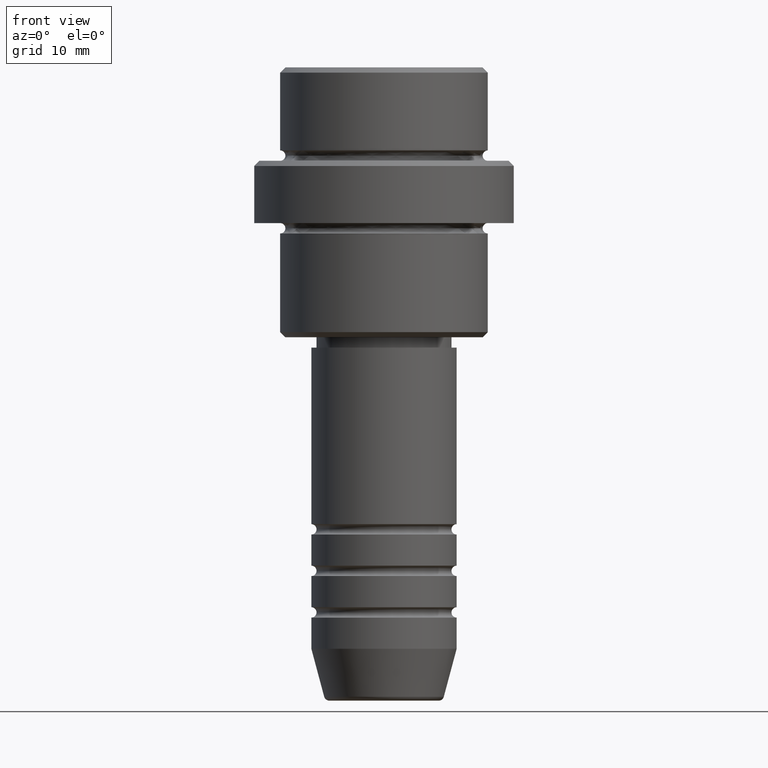
[diagram: clean part render]
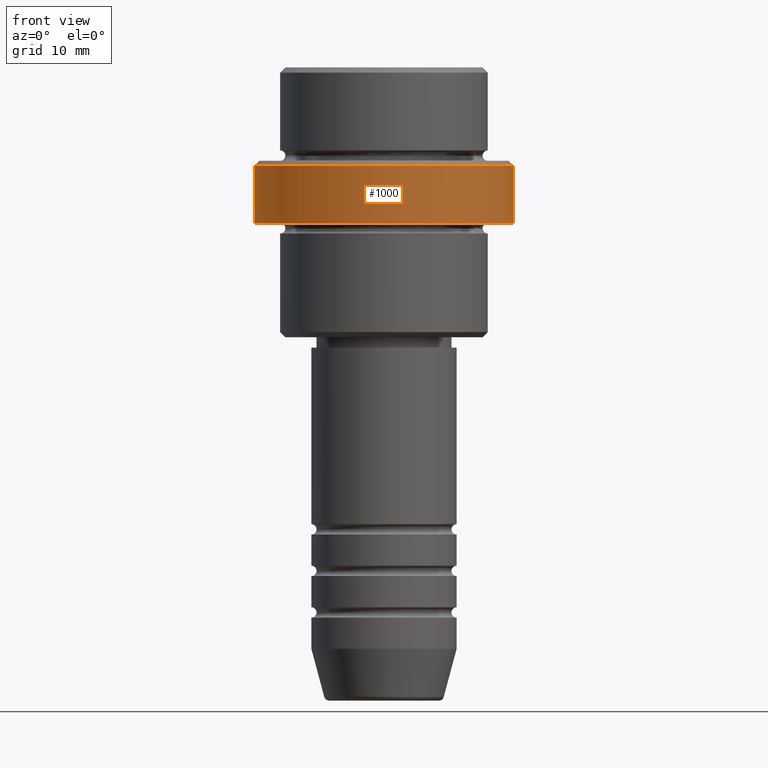
[diagram: same view with one face highlighted and labeled with its STEP entity id]
A machine part, front view. The second image highlights one B-rep face of the part: STEP entity #1000.
In plain terms, the highlighted cylindrical surface (partial cylindrical patch) has radius 12.5 mm, axis along (-0, -0, 1).
Its self-contained STEP definition (entity closure, byte-faithful):
#5 = CARTESIAN_POINT ( 'NONE',  ( 12.50000000000000000, 0.000000000000000000, 0.000000000000000000 ) ) ;
#62 = LINE ( 'NONE', #1271, #739 ) ;
#121 = CIRCLE ( 'NONE', #742, 12.50000000000000000 ) ;
#135 = VERTEX_POINT ( 'NONE', #755 ) ;
#181 = ORIENTED_EDGE ( 'NONE', *, *, #1310, .T. ) ;
#182 = EDGE_CURVE ( 'NONE', #414, #1308, #857, .T. ) ;
#204 = DIRECTION ( 'NONE',  ( -0.000000000000000000, -0.000000000000000000, 1.000000000000000000 ) ) ;
#303 = DIRECTION ( 'NONE',  ( -0.000000000000000000, -0.000000000000000000, 1.000000000000000000 ) ) ;
#311 = CIRCLE ( 'NONE', #1167, 12.50000000000000000 ) ;
#339 = ORIENTED_EDGE ( 'NONE', *, *, #182, .T. ) ;
#352 = DIRECTION ( 'NONE',  ( 1.000000000000000000, 0.000000000000000000, 0.000000000000000000 ) ) ;
#414 = VERTEX_POINT ( 'NONE', #831 ) ;
#424 = DIRECTION ( 'NONE',  ( -0.000000000000000000, -0.000000000000000000, 1.000000000000000000 ) ) ;
#434 = VECTOR ( 'NONE', #424, 1000.000000000000000 ) ;
#439 = EDGE_LOOP ( 'NONE', ( #789, #1058, #339, #181 ) ) ;
#481 = EDGE_CURVE ( 'NONE', #543, #135, #62, .T. ) ;
#531 = DIRECTION ( 'NONE',  ( 1.000000000000000000, 0.000000000000000000, 0.000000000000000000 ) ) ;
#543 = VERTEX_POINT ( 'NONE', #960 ) ;
#569 = CYLINDRICAL_SURFACE ( 'NONE', #1282, 12.50000000000000000 ) ;
#739 = VECTOR ( 'NONE', #204, 1000.000000000000000 ) ;
#742 = AXIS2_PLACEMENT_3D ( 'NONE', #997, #303, #352 ) ;
#755 = CARTESIAN_POINT ( 'NONE',  ( -12.50000000000000000, 1.530808498934191521E-15, -9.500000000000007105 ) ) ;
#783 = FACE_OUTER_BOUND ( 'NONE', #439, .T. ) ;
#789 = ORIENTED_EDGE ( 'NONE', *, *, #481, .F. ) ;
#825 = DIRECTION ( 'NONE',  ( 0.000000000000000000, 0.000000000000000000, -1.000000000000000000 ) ) ;
#831 = CARTESIAN_POINT ( 'NONE',  ( 12.50000000000000000, 0.000000000000000000, -15.00000000000000178 ) ) ;
#857 = LINE ( 'NONE', #5, #434 ) ;
#940 = EDGE_CURVE ( 'NONE', #543, #414, #121, .T. ) ;
#960 = CARTESIAN_POINT ( 'NONE',  ( -12.50000000000000000, 1.530808498934191521E-15, -15.00000000000000178 ) ) ;
#977 = DIRECTION ( 'NONE',  ( 1.000000000000000000, 0.000000000000000000, 0.000000000000000000 ) ) ;
#997 = CARTESIAN_POINT ( 'NONE',  ( 0.000000000000000000, 0.000000000000000000, -15.00000000000000178 ) ) ;
#1000 = ADVANCED_FACE ( 'NONE', ( #783 ), #569, .T. ) ;
#1058 = ORIENTED_EDGE ( 'NONE', *, *, #940, .T. ) ;
#1067 = CARTESIAN_POINT ( 'NONE',  ( 0.000000000000000000, 0.000000000000000000, -9.500000000000007105 ) ) ;
#1167 = AXIS2_PLACEMENT_3D ( 'NONE', #1067, #825, #531 ) ;
#1214 = CARTESIAN_POINT ( 'NONE',  ( 0.000000000000000000, 0.000000000000000000, 0.000000000000000000 ) ) ;
#1271 = CARTESIAN_POINT ( 'NONE',  ( -12.50000000000000000, 1.530808498934191521E-15, 0.000000000000000000 ) ) ;
#1273 = CARTESIAN_POINT ( 'NONE',  ( 12.50000000000000000, 0.000000000000000000, -9.500000000000007105 ) ) ;
#1282 = AXIS2_PLACEMENT_3D ( 'NONE', #1214, #1417, #977 ) ;
#1308 = VERTEX_POINT ( 'NONE', #1273 ) ;
#1310 = EDGE_CURVE ( 'NONE', #1308, #135, #311, .T. ) ;
#1417 = DIRECTION ( 'NONE',  ( -0.000000000000000000, -0.000000000000000000, 1.000000000000000000 ) ) ;